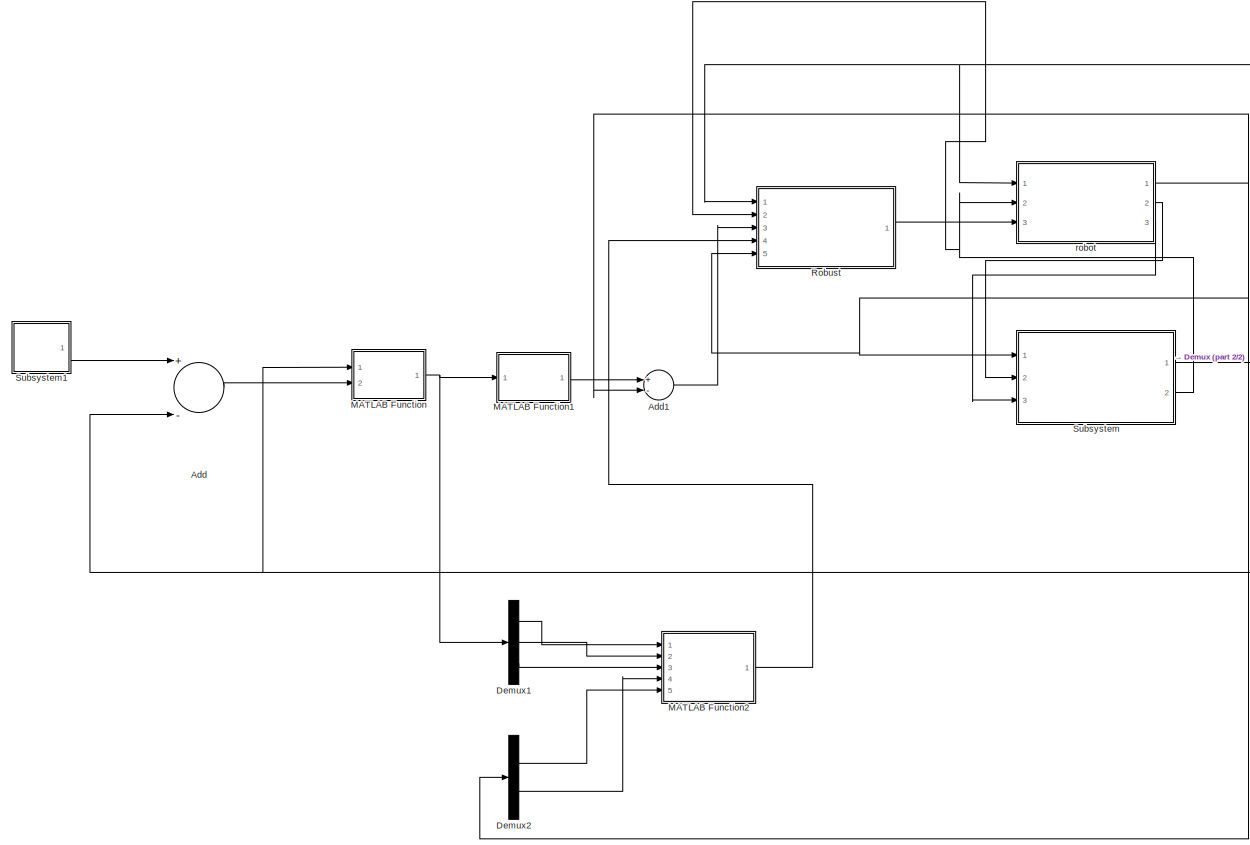
[diagram: root canvas - part 1/2, most of the canvas]
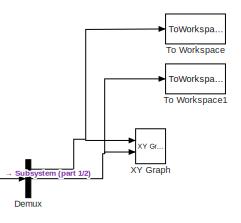
[diagram: root canvas - part 2/2, top right region]
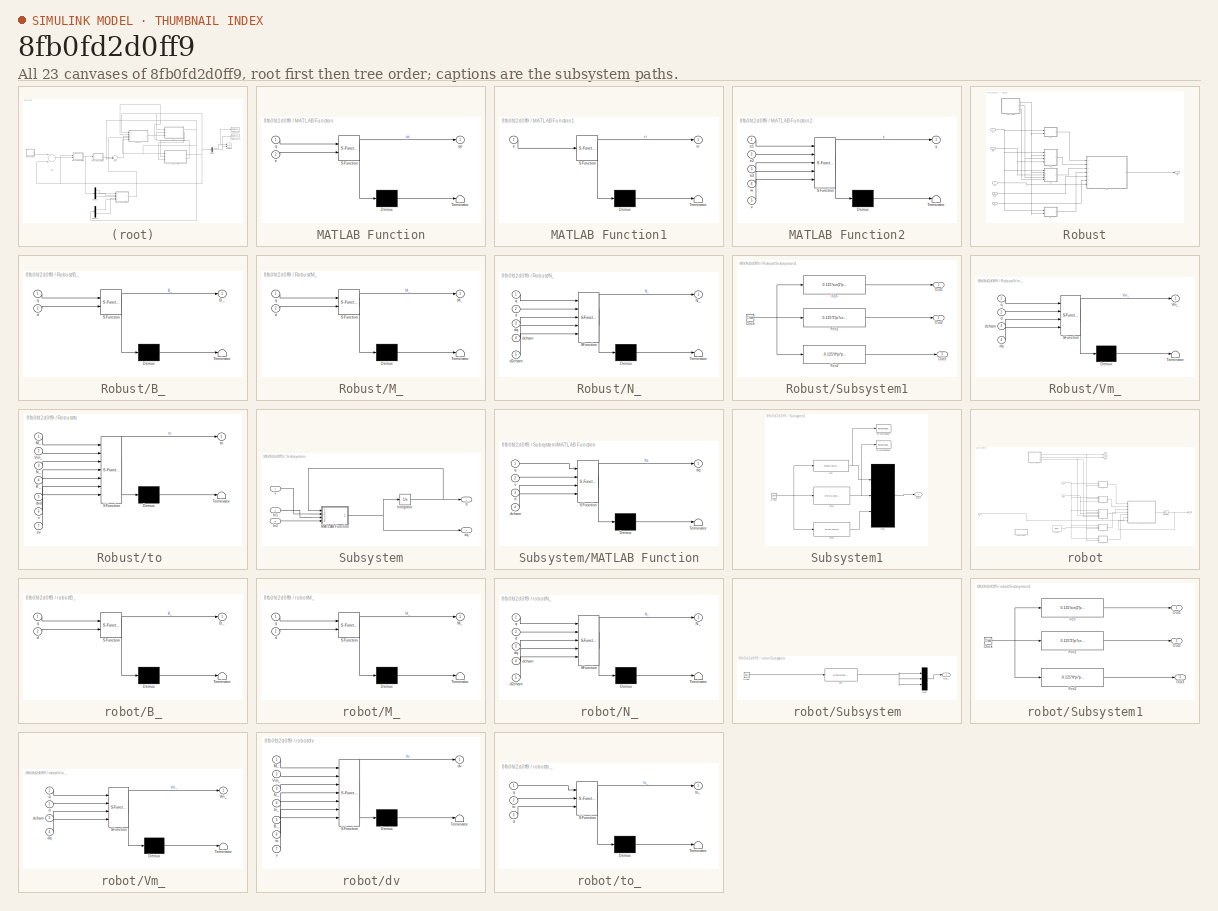
[diagram: thumbnail index - all 23 canvases of the model, root first then tree order]
MODEL slx_8fb0fd2d0ff9
KIND model
CONFIG AbsTol = auto
CONFIG EnableMultiTasking = off
CONFIG FixedStep = 0.001
CONFIG MaxStep = auto
CONFIG MinStep = auto
CONFIG RelTol = 1e-3
CONFIG SampleTimeConstraint = Unconstrained
CONFIG Solver = FixedStepAuto
CONFIG SolverName = FixedStepAuto
CONFIG StartTime = 0.0
CONFIG StopTime = 10
BLOCK [Sum] Add
  InputSameDT = off
  Inputs = +-
  OutDataTypeStr = Inherit: Inherit via internal rule
  Ports = [2, 1]
  SaturateOnIntegerOverflow = off
BLOCK [Sum] Add1
  InputSameDT = off
  Inputs = +-
  OutDataTypeStr = Inherit: Inherit via internal rule
  Ports = [2, 1]
  SaturateOnIntegerOverflow = off
BLOCK [Demux] Demux
  DisplayOption = bar
  Outputs = 3
  Ports = [1, 3]
BLOCK [Demux] Demux1
  DisplayOption = bar
  Outputs = 3
  Ports = [1, 3]
BLOCK [Demux] Demux2
  DisplayOption = bar
  Outputs = 2
  Ports = [1, 2]
BLOCK [SubSystem] MATLAB Function
  ErrorFcn = Stateflow.Translate.translate
  PermitHierarchicalResolution = ExplicitOnly
  Ports = [2, 1]
  RequestExecContextInheritance = off
  SFBlockType = MATLAB Function
  TreatAsAtomicUnit = on
BLOCK [Demux] MATLAB Function/ Demux 
  Outputs = 1
  Ports = [1, 1]
BLOCK [S-Function] MATLAB Function/ SFunction 
  EnableBusSupport = on
  FunctionName = sf_sfun
  PortCounts = [2 2]
  Ports = [2, 2]
  SFcnIsStateOwnerBlock = off
  SFunctionDeploymentMode = off
  Tag = Stateflow S-Function ban5 1
BLOCK [Terminator] MATLAB Function/ Terminator 
BLOCK [Inport] MATLAB Function/e
  IconDisplay = Port number
  Port = 2
BLOCK [Inport] MATLAB Function/q
  IconDisplay = Port number
BLOCK [Outport] MATLAB Function/qe
  IconDisplay = Port number
BLOCK [SubSystem] MATLAB Function1
  ErrorFcn = Stateflow.Translate.translate
  PermitHierarchicalResolution = ExplicitOnly
  Ports = [1, 1]
  RequestExecContextInheritance = off
  SFBlockType = MATLAB Function
  TreatAsAtomicUnit = on
BLOCK [Demux] MATLAB Function1/ Demux 
  Outputs = 1
  Ports = [1, 1]
BLOCK [S-Function] MATLAB Function1/ SFunction 
  EnableBusSupport = on
  FunctionName = sf_sfun
  PortCounts = [1 2]
  Ports = [1, 2]
  SFcnIsStateOwnerBlock = off
  SFunctionDeploymentMode = off
  Tag = Stateflow S-Function ban5 3
BLOCK [Terminator] MATLAB Function1/ Terminator 
BLOCK [Inport] MATLAB Function1/e
  IconDisplay = Port number
BLOCK [Outport] MATLAB Function1/vr
  IconDisplay = Port number
BLOCK [SubSystem] MATLAB Function2
  ErrorFcn = Stateflow.Translate.translate
  PermitHierarchicalResolution = ExplicitOnly
  Ports = [5, 1]
  RequestExecContextInheritance = off
  SFBlockType = MATLAB Function
  TreatAsAtomicUnit = on
BLOCK [Demux] MATLAB Function2/ Demux 
  Outputs = 1
  Ports = [1, 1]
BLOCK [S-Function] MATLAB Function2/ SFunction 
  EnableBusSupport = on
  FunctionName = sf_sfun
  PortCounts = [5 2]
  Ports = [5, 2]
  SFcnIsStateOwnerBlock = off
  SFunctionDeploymentMode = off
  Tag = Stateflow S-Function ban5 10
BLOCK [Terminator] MATLAB Function2/ Terminator 
BLOCK [Inport] MATLAB Function2/e1
  IconDisplay = Port number
BLOCK [Inport] MATLAB Function2/e2
  IconDisplay = Port number
  Port = 2
BLOCK [Inport] MATLAB Function2/e3
  IconDisplay = Port number
  Port = 3
BLOCK [Inport] MATLAB Function2/v
  IconDisplay = Port number
  Port = 5
BLOCK [Inport] MATLAB Function2/w
  IconDisplay = Port number
  Port = 4
BLOCK [Outport] MATLAB Function2/y
  IconDisplay = Port number
BLOCK [SubSystem] Robust
  Ports = [5, 1]
  RequestExecContextInheritance = off
BLOCK [SubSystem] Robust/B_
  ErrorFcn = Stateflow.Translate.translate
  PermitHierarchicalResolution = ExplicitOnly
  Ports = [2, 1]
  RequestExecContextInheritance = off
  SFBlockType = MATLAB Function
  TreatAsAtomicUnit = on
BLOCK [Demux] Robust/B_/ Demux 
  Outputs = 1
  Ports = [1, 1]
BLOCK [S-Function] Robust/B_/ SFunction 
  EnableBusSupport = on
  FunctionName = sf_sfun
  PortCounts = [2 2]
  Ports = [2, 2]
  SFcnIsStateOwnerBlock = off
  SFunctionDeploymentMode = off
  Tag = Stateflow S-Function ban5 11
BLOCK [Terminator] Robust/B_/ Terminator 
BLOCK [Outport] Robust/B_/B_
  IconDisplay = Port number
BLOCK [Inport] Robust/B_/d
  IconDisplay = Port number
  Port = 2
BLOCK [Inport] Robust/B_/q
  IconDisplay = Port number
BLOCK [SubSystem] Robust/M_
  ErrorFcn = Stateflow.Translate.translate
  PermitHierarchicalResolution = ExplicitOnly
  Ports = [2, 1]
  RequestExecContextInheritance = off
  SFBlockType = MATLAB Function
  TreatAsAtomicUnit = on
BLOCK [Demux] Robust/M_/ Demux 
  Outputs = 1
  Ports = [1, 1]
BLOCK [S-Function] Robust/M_/ SFunction 
  EnableBusSupport = on
  FunctionName = sf_sfun
  PortCounts = [2 2]
  Ports = [2, 2]
  SFcnIsStateOwnerBlock = off
  SFunctionDeploymentMode = off
  Tag = Stateflow S-Function ban5 13
BLOCK [Terminator] Robust/M_/ Terminator 
BLOCK [Outport] Robust/M_/M_
  IconDisplay = Port number
BLOCK [Inport] Robust/M_/d
  IconDisplay = Port number
  Port = 2
BLOCK [Inport] Robust/M_/q
  IconDisplay = Port number
BLOCK [SubSystem] Robust/N_
  ErrorFcn = Stateflow.Translate.translate
  PermitHierarchicalResolution = ExplicitOnly
  Ports = [5, 1]
  RequestExecContextInheritance = off
  SFBlockType = MATLAB Function
  TreatAsAtomicUnit = on
BLOCK [Demux] Robust/N_/ Demux 
  Outputs = 1
  Ports = [1, 1]
BLOCK [S-Function] Robust/N_/ SFunction 
  EnableBusSupport = on
  FunctionName = sf_sfun
  PortCounts = [5 2]
  Ports = [5, 2]
  SFcnIsStateOwnerBlock = off
  SFunctionDeploymentMode = off
  Tag = Stateflow S-Function ban5 14
BLOCK [Terminator] Robust/N_/ Terminator 
BLOCK [Outport] Robust/N_/N_
  IconDisplay = Port number
BLOCK [Inport] Robust/N_/d
  IconDisplay = Port number
  Port = 2
BLOCK [Inport] Robust/N_/d2cham
  IconDisplay = Port number
  Port = 5
BLOCK [Inport] Robust/N_/dcham
  IconDisplay = Port number
  Port = 4
BLOCK [Inport] Robust/N_/dq
  IconDisplay = Port number
  Port = 3
BLOCK [Inport] Robust/N_/q
  IconDisplay = Port number
BLOCK [SubSystem] Robust/Subsystem1
  Ports = [0, 3]
  RequestExecContextInheritance = off
BLOCK [Clock] Robust/Subsystem1/Clock
BLOCK [Fcn] Robust/Subsystem1/Fcn
  Expr = 0.125*sin(2*pi*u(1))
BLOCK [Fcn] Robust/Subsystem1/Fcn1
  Expr = 0.125*2*pi*cos(2*pi*u(1))
BLOCK [Fcn] Robust/Subsystem1/Fcn2
  Expr = -0.125*4*pi*pi*sin(2*pi*u(1))
BLOCK [Outport] Robust/Subsystem1/Out1
  IconDisplay = Port number
BLOCK [Outport] Robust/Subsystem1/Out2
  IconDisplay = Port number
  Port = 2
BLOCK [Outport] Robust/Subsystem1/Out3
  IconDisplay = Port number
  Port = 3
BLOCK [SubSystem] Robust/Vm_
  ErrorFcn = Stateflow.Translate.translate
  PermitHierarchicalResolution = ExplicitOnly
  Ports = [4, 1]
  RequestExecContextInheritance = off
  SFBlockType = MATLAB Function
  TreatAsAtomicUnit = on
BLOCK [Demux] Robust/Vm_/ Demux 
  Outputs = 1
  Ports = [1, 1]
BLOCK [S-Function] Robust/Vm_/ SFunction 
  EnableBusSupport = on
  FunctionName = sf_sfun
  PortCounts = [4 2]
  Ports = [4, 2]
  SFcnIsStateOwnerBlock = off
  SFunctionDeploymentMode = off
  Tag = Stateflow S-Function ban5 15
BLOCK [Terminator] Robust/Vm_/ Terminator 
BLOCK [Outport] Robust/Vm_/Vm_
  IconDisplay = Port number
BLOCK [Inport] Robust/Vm_/d
  IconDisplay = Port number
  Port = 2
BLOCK [Inport] Robust/Vm_/dcham
  IconDisplay = Port number
  Port = 3
BLOCK [Inport] Robust/Vm_/dq
  IconDisplay = Port number
  Port = 4
BLOCK [Inport] Robust/Vm_/q
  IconDisplay = Port number
BLOCK [Inport] Robust/dq
  IconDisplay = Port number
  Port = 2
BLOCK [Inport] Robust/dvd
  IconDisplay = Port number
  Port = 4
BLOCK [Inport] Robust/ev
  IconDisplay = Port number
  Port = 3
BLOCK [Inport] Robust/q
  IconDisplay = Port number
BLOCK [Outport] Robust/to
  IconDisplay = Port number
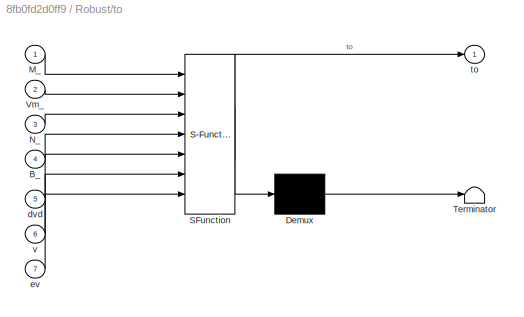
BLOCK [SubSystem] Robust/to 
  ErrorFcn = Stateflow.Translate.translate
  PermitHierarchicalResolution = ExplicitOnly
  Ports = [7, 1]
  RequestExecContextInheritance = off
  SFBlockType = MATLAB Function
  TreatAsAtomicUnit = on
BLOCK [Demux] Robust/to / Demux 
  Outputs = 1
  Ports = [1, 1]
BLOCK [S-Function] Robust/to / SFunction 
  EnableBusSupport = on
  FunctionName = sf_sfun
  PortCounts = [7 2]
  Ports = [7, 2]
  SFcnIsStateOwnerBlock = off
  SFunctionDeploymentMode = off
  Tag = Stateflow S-Function ban5 16
BLOCK [Terminator] Robust/to / Terminator 
BLOCK [Inport] Robust/to /B_
  IconDisplay = Port number
  Port = 4
BLOCK [Inport] Robust/to /M_
  IconDisplay = Port number
BLOCK [Inport] Robust/to /N_
  IconDisplay = Port number
  Port = 3
BLOCK [Inport] Robust/to /Vm_
  IconDisplay = Port number
  Port = 2
BLOCK [Inport] Robust/to /dvd
  IconDisplay = Port number
  Port = 5
BLOCK [Inport] Robust/to /ev
  IconDisplay = Port number
  Port = 7
BLOCK [Outport] Robust/to /to
  IconDisplay = Port number
BLOCK [Inport] Robust/to /v
  IconDisplay = Port number
  Port = 6
BLOCK [Inport] Robust/v
  IconDisplay = Port number
  Port = 5
BLOCK [SubSystem] Subsystem
  Ports = [3, 2]
  RequestExecContextInheritance = off
BLOCK [Inport] Subsystem/In1
  IconDisplay = Port number
  Port = 2
BLOCK [Inport] Subsystem/In2
  IconDisplay = Port number
  Port = 3
BLOCK [Integrator] Subsystem/Integrator
  InitialCondition = [1.8852;-0.2772;3*pi/8]
  Ports = [1, 1]
BLOCK [SubSystem] Subsystem/MATLAB Function
  ErrorFcn = Stateflow.Translate.translate
  PermitHierarchicalResolution = ExplicitOnly
  Ports = [4, 1]
  RequestExecContextInheritance = off
  SFBlockType = MATLAB Function
  TreatAsAtomicUnit = on
BLOCK [Demux] Subsystem/MATLAB Function/ Demux 
  Outputs = 1
  Ports = [1, 1]
BLOCK [S-Function] Subsystem/MATLAB Function/ SFunction 
  EnableBusSupport = on
  FunctionName = sf_sfun
  PortCounts = [4 2]
  Ports = [4, 2]
  SFcnIsStateOwnerBlock = off
  SFunctionDeploymentMode = off
  Tag = Stateflow S-Function ban5 2
BLOCK [Terminator] Subsystem/MATLAB Function/ Terminator 
BLOCK [Inport] Subsystem/MATLAB Function/d
  IconDisplay = Port number
  Port = 3
BLOCK [Inport] Subsystem/MATLAB Function/dcham
  IconDisplay = Port number
  Port = 4
BLOCK [Outport] Subsystem/MATLAB Function/dq
  IconDisplay = Port number
BLOCK [Inport] Subsystem/MATLAB Function/q
  IconDisplay = Port number
BLOCK [Inport] Subsystem/MATLAB Function/v
  IconDisplay = Port number
  Port = 2
BLOCK [Outport] Subsystem/dq
  IconDisplay = Port number
  Port = 2
BLOCK [Outport] Subsystem/q
  IconDisplay = Port number
BLOCK [Inport] Subsystem/v
  IconDisplay = Port number
BLOCK [SubSystem] Subsystem1
  Ports = [0, 1]
  RequestExecContextInheritance = off
BLOCK [Clock] Subsystem1/Clock
BLOCK [Fcn] Subsystem1/Fcn
  Expr = 2*cos(0.15*u(1))
BLOCK [Fcn] Subsystem1/Fcn1
  Expr = 2*sin(0.15*u(1))
BLOCK [Fcn] Subsystem1/Fcn2
  Expr = pi/2+0.15*u(1)
BLOCK [Mux] Subsystem1/Mux
  DisplayOption = bar
  Inputs = 3
  Ports = [3, 1]
BLOCK [Outport] Subsystem1/Out1
  IconDisplay = Port number
BLOCK [ToWorkspace] Subsystem1/To Workspace
  FixptAsFi = on
  MaxDataPoints = inf
  Ports = [1]
  SampleTime = -1
  Save2DSignal = 3-D array (concatenate along third dimension)
  VariableName = xd
BLOCK [ToWorkspace] Subsystem1/To Workspace1
  FixptAsFi = on
  MaxDataPoints = inf
  Ports = [1]
  SampleTime = -1
  Save2DSignal = 3-D array (concatenate along third dimension)
  VariableName = yd
BLOCK [ToWorkspace] To Workspace
  FixptAsFi = on
  MaxDataPoints = inf
  Ports = [1]
  SampleTime = -1
  Save2DSignal = 3-D array (concatenate along third dimension)
  VariableName = xc
BLOCK [ToWorkspace] To Workspace1
  FixptAsFi = on
  MaxDataPoints = inf
  Ports = [1]
  SampleTime = -1
  Save2DSignal = 3-D array (concatenate along third dimension)
  VariableName = yc
BLOCK [Reference] XY Graph  REF=simulink/Sinks/XY Graph
  Ports = [2]
  SourceBlock = simulink/Sinks/XY Graph
  SourceProductBaseCode = SL
  SourceProductName = Simulink
  SourceType = XY scope.
BLOCK [SubSystem] robot
  Ports = [3, 3]
  RequestExecContextInheritance = off
BLOCK [SubSystem] robot/B_
  ErrorFcn = Stateflow.Translate.translate
  PermitHierarchicalResolution = ExplicitOnly
  Ports = [2, 1]
  RequestExecContextInheritance = off
  SFBlockType = MATLAB Function
  TreatAsAtomicUnit = on
BLOCK [Demux] robot/B_/ Demux 
  Outputs = 1
  Ports = [1, 1]
BLOCK [S-Function] robot/B_/ SFunction 
  EnableBusSupport = on
  FunctionName = sf_sfun
  PortCounts = [2 2]
  Ports = [2, 2]
  SFcnIsStateOwnerBlock = off
  SFunctionDeploymentMode = off
  Tag = Stateflow S-Function ban5 8
BLOCK [Terminator] robot/B_/ Terminator 
BLOCK [Outport] robot/B_/B_
  IconDisplay = Port number
BLOCK [Inport] robot/B_/d
  IconDisplay = Port number
  Port = 2
BLOCK [Inport] robot/B_/q
  IconDisplay = Port number
BLOCK [Constant] robot/Constant
  Value = [0;0;0]
BLOCK [Integrator] robot/Integrator
  InitialCondition = [0;0]
  Ports = [1, 1]
BLOCK [SubSystem] robot/M_
  ErrorFcn = Stateflow.Translate.translate
  PermitHierarchicalResolution = ExplicitOnly
  Ports = [2, 1]
  RequestExecContextInheritance = off
  SFBlockType = MATLAB Function
  TreatAsAtomicUnit = on
BLOCK [Demux] robot/M_/ Demux 
  Outputs = 1
  Ports = [1, 1]
BLOCK [S-Function] robot/M_/ SFunction 
  EnableBusSupport = on
  FunctionName = sf_sfun
  PortCounts = [2 2]
  Ports = [2, 2]
  SFcnIsStateOwnerBlock = off
  SFunctionDeploymentMode = off
  Tag = Stateflow S-Function ban5 4
BLOCK [Terminator] robot/M_/ Terminator 
BLOCK [Outport] robot/M_/M_
  IconDisplay = Port number
BLOCK [Inport] robot/M_/d
  IconDisplay = Port number
  Port = 2
BLOCK [Inport] robot/M_/q
  IconDisplay = Port number
BLOCK [SubSystem] robot/N_
  ErrorFcn = Stateflow.Translate.translate
  PermitHierarchicalResolution = ExplicitOnly
  Ports = [5, 1]
  RequestExecContextInheritance = off
  SFBlockType = MATLAB Function
  TreatAsAtomicUnit = on
BLOCK [Demux] robot/N_/ Demux 
  Outputs = 1
  Ports = [1, 1]
BLOCK [S-Function] robot/N_/ SFunction 
  EnableBusSupport = on
  FunctionName = sf_sfun
  PortCounts = [5 2]
  Ports = [5, 2]
  SFcnIsStateOwnerBlock = off
  SFunctionDeploymentMode = off
  Tag = Stateflow S-Function ban5 6
BLOCK [Terminator] robot/N_/ Terminator 
BLOCK [Outport] robot/N_/N_
  IconDisplay = Port number
BLOCK [Inport] robot/N_/d
  IconDisplay = Port number
  Port = 2
BLOCK [Inport] robot/N_/d2cham
  IconDisplay = Port number
  Port = 5
BLOCK [Inport] robot/N_/dcham
  IconDisplay = Port number
  Port = 4
BLOCK [Inport] robot/N_/dq
  IconDisplay = Port number
  Port = 3
BLOCK [Inport] robot/N_/q
  IconDisplay = Port number
BLOCK [Outport] robot/Out1
  IconDisplay = Port number
  Port = 2
BLOCK [Outport] robot/Out2
  IconDisplay = Port number
  Port = 3
BLOCK [SubSystem] robot/Subsystem
  Ports = [0, 1]
  RequestExecContextInheritance = off
BLOCK [Clock] robot/Subsystem/Clock
BLOCK [Fcn] robot/Subsystem/Fcn
  Expr = 0.2+sin(2*pi*u(1))
BLOCK [Mux] robot/Subsystem/Mux
  DisplayOption = bar
  Inputs = 3
  Ports = [3, 1]
BLOCK [Outport] robot/Subsystem/Out1
  IconDisplay = Port number
BLOCK [SubSystem] robot/Subsystem1
  Ports = [0, 3]
  RequestExecContextInheritance = off
BLOCK [Clock] robot/Subsystem1/Clock
BLOCK [Fcn] robot/Subsystem1/Fcn
  Expr = 0.125*sin(2*pi*u(1))
BLOCK [Fcn] robot/Subsystem1/Fcn1
  Expr = 0.125*2*pi*cos(2*pi*u(1))
BLOCK [Fcn] robot/Subsystem1/Fcn2
  Expr = -0.125*4*pi*pi*sin(2*pi*u(1))
BLOCK [Outport] robot/Subsystem1/Out1
  IconDisplay = Port number
BLOCK [Outport] robot/Subsystem1/Out2
  IconDisplay = Port number
  Port = 2
BLOCK [Outport] robot/Subsystem1/Out3
  IconDisplay = Port number
  Port = 3
BLOCK [SubSystem] robot/Vm_
  ErrorFcn = Stateflow.Translate.translate
  PermitHierarchicalResolution = ExplicitOnly
  Ports = [4, 1]
  RequestExecContextInheritance = off
  SFBlockType = MATLAB Function
  TreatAsAtomicUnit = on
BLOCK [Demux] robot/Vm_/ Demux 
  Outputs = 1
  Ports = [1, 1]
BLOCK [S-Function] robot/Vm_/ SFunction 
  EnableBusSupport = on
  FunctionName = sf_sfun
  PortCounts = [4 2]
  Ports = [4, 2]
  SFcnIsStateOwnerBlock = off
  SFunctionDeploymentMode = off
  Tag = Stateflow S-Function ban5 5
BLOCK [Terminator] robot/Vm_/ Terminator 
BLOCK [Outport] robot/Vm_/Vm_
  IconDisplay = Port number
BLOCK [Inport] robot/Vm_/d
  IconDisplay = Port number
  Port = 2
BLOCK [Inport] robot/Vm_/dcham
  IconDisplay = Port number
  Port = 3
BLOCK [Inport] robot/Vm_/dq
  IconDisplay = Port number
  Port = 4
BLOCK [Inport] robot/Vm_/q
  IconDisplay = Port number
BLOCK [Inport] robot/dq
  IconDisplay = Port number
  Port = 2
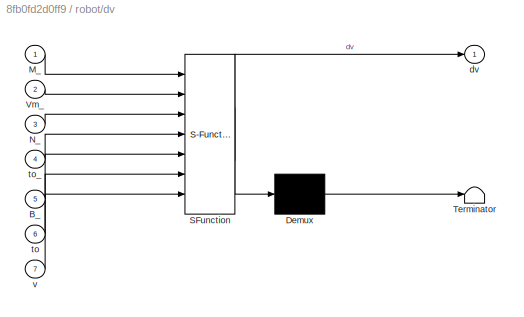
BLOCK [SubSystem] robot/dv
  ErrorFcn = Stateflow.Translate.translate
  PermitHierarchicalResolution = ExplicitOnly
  Ports = [7, 1]
  RequestExecContextInheritance = off
  SFBlockType = MATLAB Function
  TreatAsAtomicUnit = on
BLOCK [Demux] robot/dv/ Demux 
  Outputs = 1
  Ports = [1, 1]
BLOCK [S-Function] robot/dv/ SFunction 
  EnableBusSupport = on
  FunctionName = sf_sfun
  PortCounts = [7 2]
  Ports = [7, 2]
  SFcnIsStateOwnerBlock = off
  SFunctionDeploymentMode = off
  Tag = Stateflow S-Function ban5 9
BLOCK [Terminator] robot/dv/ Terminator 
BLOCK [Inport] robot/dv/B_
  IconDisplay = Port number
  Port = 5
BLOCK [Inport] robot/dv/M_
  IconDisplay = Port number
BLOCK [Inport] robot/dv/N_
  IconDisplay = Port number
  Port = 3
BLOCK [Inport] robot/dv/Vm_
  IconDisplay = Port number
  Port = 2
BLOCK [Outport] robot/dv/dv
  IconDisplay = Port number
BLOCK [Inport] robot/dv/to
  IconDisplay = Port number
  Port = 6
BLOCK [Inport] robot/dv/to_
  IconDisplay = Port number
  Port = 4
BLOCK [Inport] robot/dv/v
  IconDisplay = Port number
  Port = 7
BLOCK [Inport] robot/q
  IconDisplay = Port number
BLOCK [Inport] robot/to
  IconDisplay = Port number
  Port = 3
BLOCK [SubSystem] robot/to_
  ErrorFcn = Stateflow.Translate.translate
  PermitHierarchicalResolution = ExplicitOnly
  Ports = [3, 1]
  RequestExecContextInheritance = off
  SFBlockType = MATLAB Function
  TreatAsAtomicUnit = on
BLOCK [Demux] robot/to_/ Demux 
  Outputs = 1
  Ports = [1, 1]
BLOCK [S-Function] robot/to_/ SFunction 
  EnableBusSupport = on
  FunctionName = sf_sfun
  PortCounts = [3 2]
  Ports = [3, 2]
  SFcnIsStateOwnerBlock = off
  SFunctionDeploymentMode = off
  Tag = Stateflow S-Function ban5 7
BLOCK [Terminator] robot/to_/ Terminator 
BLOCK [Inport] robot/to_/d
  IconDisplay = Port number
  Port = 3
BLOCK [Inport] robot/to_/q
  IconDisplay = Port number
BLOCK [Inport] robot/to_/to
  IconDisplay = Port number
  Port = 2
BLOCK [Outport] robot/to_/to_
  IconDisplay = Port number
BLOCK [Outport] robot/v
  IconDisplay = Port number
LINE Add1:1 -> Robust:3
LINE Add:1 -> MATLAB Function:2
LINE Demux1:1 -> MATLAB Function2:1
LINE Demux1:2 -> MATLAB Function2:2
LINE Demux1:3 -> MATLAB Function2:3
LINE Demux2:1 -> MATLAB Function2:5
LINE Demux2:2 -> MATLAB Function2:4
NET Demux:1 -> To Workspace:1, XY Graph:1
NET Demux:2 -> To Workspace1:1, XY Graph:2
LINE MATLAB Function1:1 -> Add1:1
LINE MATLAB Function2:1 -> Robust:4
NET MATLAB Function:1 -> Demux1:1, MATLAB Function1:1
LINE Robust/B_:1 -> Robust/to :4
LINE Robust/M_:1 -> Robust/to :1
LINE Robust/N_:1 -> Robust/to :3
NET Robust/Subsystem1/Clock:1 -> Robust/Subsystem1/Fcn1:1, Robust/Subsystem1/Fcn2:1, Robust/Subsystem1/Fcn:1
LINE Robust/Subsystem1/Fcn1:1 -> Robust/Subsystem1/Out2:1
LINE Robust/Subsystem1/Fcn2:1 -> Robust/Subsystem1/Out3:1
LINE Robust/Subsystem1/Fcn:1 -> Robust/Subsystem1/Out1:1
NET Robust/Subsystem1:1 -> Robust/B_:2, Robust/M_:2, Robust/N_:2, Robust/Vm_:2
NET Robust/Subsystem1:2 -> Robust/N_:4, Robust/Vm_:3
LINE Robust/Subsystem1:3 -> Robust/N_:5
LINE Robust/Vm_:1 -> Robust/to :2
NET Robust/dq:1 -> Robust/N_:3, Robust/Vm_:4
LINE Robust/dvd:1 -> Robust/to :5
LINE Robust/ev:1 -> Robust/to :7
NET Robust/q:1 -> Robust/B_:1, Robust/M_:1, Robust/N_:1, Robust/Vm_:1
LINE Robust/to :1 -> Robust/to:1
LINE Robust/v:1 -> Robust/to :6
LINE Robust:1 -> robot:3
LINE Subsystem/In1:1 -> Subsystem/MATLAB Function:3
LINE Subsystem/In2:1 -> Subsystem/MATLAB Function:4
NET Subsystem/Integrator:1 -> Subsystem/MATLAB Function:1, Subsystem/q:1
NET Subsystem/MATLAB Function:1 -> Subsystem/Integrator:1, Subsystem/dq:1
LINE Subsystem/v:1 -> Subsystem/MATLAB Function:2
NET Subsystem1/Clock:1 -> Subsystem1/Fcn1:1, Subsystem1/Fcn2:1, Subsystem1/Fcn:1
NET Subsystem1/Fcn1:1 -> Subsystem1/Mux:2, Subsystem1/To Workspace1:1
LINE Subsystem1/Fcn2:1 -> Subsystem1/Mux:3
NET Subsystem1/Fcn:1 -> Subsystem1/Mux:1, Subsystem1/To Workspace:1
LINE Subsystem1/Mux:1 -> Subsystem1/Out1:1
LINE Subsystem1:1 -> Add:1
NET Subsystem:1 -> Add:2, Demux:1, MATLAB Function:1, Robust:1, robot:1
NET Subsystem:2 -> Robust:2, robot:2
LINE robot/B_:1 -> robot/dv:5
LINE robot/Constant:1 -> robot/to_:2
NET robot/Integrator:1 -> robot/dv:7, robot/v:1
LINE robot/M_:1 -> robot/dv:1
LINE robot/N_:1 -> robot/dv:3
LINE robot/Subsystem/Clock:1 -> robot/Subsystem/Fcn:1
NET robot/Subsystem/Fcn:1 -> robot/Subsystem/Mux:1, robot/Subsystem/Mux:2, robot/Subsystem/Mux:3
LINE robot/Subsystem/Mux:1 -> robot/Subsystem/Out1:1
NET robot/Subsystem1/Clock:1 -> robot/Subsystem1/Fcn1:1, robot/Subsystem1/Fcn2:1, robot/Subsystem1/Fcn:1
LINE robot/Subsystem1/Fcn1:1 -> robot/Subsystem1/Out2:1
LINE robot/Subsystem1/Fcn2:1 -> robot/Subsystem1/Out3:1
LINE robot/Subsystem1/Fcn:1 -> robot/Subsystem1/Out1:1
NET robot/Subsystem1:1 -> robot/B_:2, robot/M_:2, robot/N_:2, robot/Out1:1, robot/Vm_:2, robot/to_:3
NET robot/Subsystem1:2 -> robot/N_:4, robot/Out2:1
LINE robot/Subsystem1:3 -> robot/N_:5
LINE robot/Vm_:1 -> robot/dv:2
NET robot/dq:1 -> robot/N_:3, robot/Vm_:4
LINE robot/dv:1 -> robot/Integrator:1
NET robot/q:1 -> robot/B_:1, robot/M_:1, robot/N_:1, robot/Vm_:1, robot/to_:1
LINE robot/to:1 -> robot/dv:6
LINE robot/to_:1 -> robot/dv:4
NET robot:1 -> Add1:2, Demux2:1, Robust:5, Subsystem:1
LINE robot:2 -> Subsystem:2
LINE robot:3 -> Subsystem:3
note: NET lines group one-source signal fan-out (src -> all destinations, sorted); 1:1 wires keep LINE
CHART MATLAB Function states=1 transitions=1
  STATE_LABEL 'eML_blk_kernel()'
  STATE_LABEL 'SCRIPT:\nfunction qe = fcn(q,e)\nphi=q(3);\nqe=[cos(phi) sin(phi) 0;-sin(phi) cos(phi) 0;0 0 1]*e;\nend'
CHART Subsystem/MATLAB Function states=1 transitions=1
  STATE_LABEL 'eML_blk_kernel()'
  STATE_LABEL 'SCRIPT:\nfunction dq = fcn(q,v,d,dcham)\nphi=[0 0 1]*q;\nS=[cos(phi) -d*sin(phi);sin(phi) d*cos(phi);0 1];\nn=[dcham*cos(phi);dcham*sin(phi);0];\ndq=S*v+n;\nend'
CHART MATLAB Function1 states=1 transitions=1
  STATE_LABEL 'eML_blk_kernel()'
  STATE_LABEL 'SCRIPT:\nfunction vr=fcn(e)\nvr=[0.3*cos([0 0 1]*e)+10*[1 0 0]*e;\n    0.15+10*0.3*[0 1 0]*e+10*0.3*sin([0 0 1]*e)];\nend'
CHART robot/M_ states=1 transitions=1
  STATE_LABEL 'eML_blk_kernel()'
  STATE_LABEL "SCRIPT:\nfunction M_ = fcn(q,d)\nm=8;\nI=0.7075+5*d^2;\nM=[m 0 m*d*sin(q(3));\n    0 m -m*d*cos(q(3));\n    m*d*sin(q(3)) -m*d*cos(q(3)) I];\nS=[cos(q(3)) -d*sin(q(3));\n    sin(q(3)) d*cos(q(3));\n    0 1];\nM_=S'*M*S;\nend"
CHART robot/Vm_ states=1 transitions=1
  STATE_LABEL 'eML_blk_kernel()'
  STATE_LABEL 'SCRIPT:\nfunction Vm_ = fcn(q,d,dcham,dq)\nm=8;\nI=0.7075+5*d^2;\nM=[m 0 m*d*sin(q(3));\n    0 m -m*d*cos(q(3));\n    m*d*sin(q(3)) -m*d*cos(q(3)) I];\nS=[cos(q(3)) -d*sin(q(3));\n    sin(q(3)) d*cos(q(3));\n    0 1];\ndS=[-sin(q(3))*dq(3) -dcham*sin(q(3))-d*cos(q(3))*dq(3);\n    cos(q(3))*dq(3) dcham*cos(q(3))-d*sin(q(3))*dq(3);\n    0 0];\nVm=[0 0 m*d*dq(3)*cos(q(3));\n    0 0 m*d*dq(3)*sin(q(3));\n    0 0 0];...<+24ch>'
CHART robot/N_ states=1 transitions=1
  STATE_LABEL 'eML_blk_kernel()'
  STATE_LABEL 'SCRIPT:\nfunction N_ = fcn(q,d,dq,dcham,d2cham)\nm=8;\nI=0.7075+5*d^2;\nM=[m 0 m*d*sin(q(3));\n    0 m -m*d*cos(q(3));\n    m*d*sin(q(3)) -m*d*cos(q(3)) I];\nS=[cos(q(3)) -d*sin(q(3));\n    sin(q(3)) d*cos(q(3));\n    0 1];\nVm=[0 0 m*d*dq(3)*cos(q(3));\n    0 0 m*d*dq(3)*sin(q(3));\n    0 0 0];\nn=[dcham*cos(q(3));dcham*sin(q(3));0];\ndn=[d2cham*cos(q(3))+dcham*dq(3)*-sin(q(3));\n    d2cham*sin(q(3))+dcham*dq(3...<+43ch>'
CHART robot/to_ states=1 transitions=1
  STATE_LABEL 'eML_blk_kernel()'
  STATE_LABEL "SCRIPT:\nfunction to_ = fcn(q,to,d)\nS=[cos(q(3)) -d*sin(q(3));\n    sin(q(3)) d*cos(q(3));\n    0 1];\nto_=S'*to;\nend"
CHART robot/B_ states=1 transitions=1
  STATE_LABEL 'eML_blk_kernel()'
  STATE_LABEL "SCRIPT:\nfunction B_ = fcn(q,d)\nS=[cos(q(3)) -d*sin(q(3));\n    sin(q(3)) d*cos(q(3));\n    0 1];\nB=1/0.2*[cos(q(3)) cos(q(3));\n    sin(q(3)) sin(q(3));\n    0.25 -0.25];\nB_=S'*B;\nend"
CHART robot/dv states=1 transitions=1
  STATE_LABEL 'eML_blk_kernel()'
  STATE_LABEL 'SCRIPT:\nfunction dv = fcn(M_,Vm_,N_,to_,B_,to,v)\ndv=M_\\(B_*to-to_-N_-Vm_*v);\nend'
CHART MATLAB Function2 states=1 transitions=1
  STATE_LABEL 'eML_blk_kernel()'
  STATE_LABEL 'SCRIPT:\nfunction y = fcn(e1,e2,e3,w,v)\ndvd=-0.3*sin(e3)*(0.15-w)+10*(0.3*cos(e3)+w*e2-v);\ndwd=10*0.3*(0.3*sin(e3)-w*e1)+10*0.3*(0.15-w)*cos(e3);\ny=[dvd;dwd];\nend'
CHART Robust/B_ states=1 transitions=1
  STATE_LABEL 'eML_blk_kernel()'
  STATE_LABEL "SCRIPT:\nfunction B_ = fcn(q,d)\nS=[cos(q(3)) -d*sin(q(3));\n    sin(q(3)) d*cos(q(3));\n    0 1];\nB=1/0.2*[cos(q(3)) cos(q(3));\n    sin(q(3)) sin(q(3));\n    0.25 -0.25];\nB_=S'*B;\nend"
CHART Robust/M_ states=1 transitions=1
  STATE_LABEL 'eML_blk_kernel()'
  STATE_LABEL "SCRIPT:\nfunction M_ = fcn(q,d)\nm=8;\nI=0.7075+5*d^2;\nM=[m 0 m*d*sin(q(3));\n    0 m -m*d*cos(q(3));\n    m*d*sin(q(3)) -m*d*cos(q(3)) I];\nS=[cos(q(3)) -d*sin(q(3));\n    sin(q(3)) d*cos(q(3));\n    0 1];\nM_=S'*M*S;\nend"
CHART Robust/N_ states=1 transitions=1
  STATE_LABEL 'eML_blk_kernel()'
  STATE_LABEL 'SCRIPT:\nfunction N_ = fcn(q,d,dq,dcham,d2cham)\nm=8;\nI=0.7075+5*d^2;\nM=[m 0 m*d*sin(q(3));\n    0 m -m*d*cos(q(3));\n    m*d*sin(q(3)) -m*d*cos(q(3)) I];\nS=[cos(q(3)) -d*sin(q(3));\n    sin(q(3)) d*cos(q(3));\n    0 1];\nVm=[0 0 m*d*dq(3)*cos(q(3));\n    0 0 m*d*dq(3)*sin(q(3));\n    0 0 0];\nn=[dcham*cos(q(3));dcham*sin(q(3));0];\ndn=[d2cham*cos(q(3))+dcham*dq(3)*-sin(q(3));\n    d2cham*sin(q(3))+dcham*dq(3...<+43ch>'
CHART Robust/Vm_ states=1 transitions=1
  STATE_LABEL 'eML_blk_kernel()'
  STATE_LABEL 'SCRIPT:\nfunction Vm_ = fcn(q,d,dcham,dq)\nm=8;\nI=0.7075+5*d^2;\nM=[m 0 m*d*sin(q(3));\n    0 m -m*d*cos(q(3));\n    m*d*sin(q(3)) -m*d*cos(q(3)) I];\nS=[cos(q(3)) -d*sin(q(3));\n    sin(q(3)) d*cos(q(3));\n    0 1];\ndS=[-sin(q(3))*dq(3) -dcham*sin(q(3))-d*cos(q(3))*dq(3);\n    cos(q(3))*dq(3) dcham*cos(q(3))-d*sin(q(3))*dq(3);\n    0 0];\nVm=[0 0 m*d*dq(3)*cos(q(3));\n    0 0 m*d*dq(3)*sin(q(3));\n    0 0 0];...<+24ch>'
CHART Robust/to
 states=1 transitions=1
  STATE_LABEL 'eML_blk_kernel()'
  STATE_LABEL 'SCRIPT:\nfunction to = fcn(M_,Vm_,N_,B_,dvd,v,ev)\ns=ev;\nsats=[0;0];\nif abs(s(1))>0.02\n    sats(1)=1;\nelse\n    sats(1)=s(1)*50;\nend\nif abs(s(2))>0.02\n    sats(2)=1;\nelse\n    sats(2)=s(2)*50;\nend\nto=B_\\(M_*dvd+Vm_*v+N_+(20+20)*M_*sats+30*M_*s);\nend'
